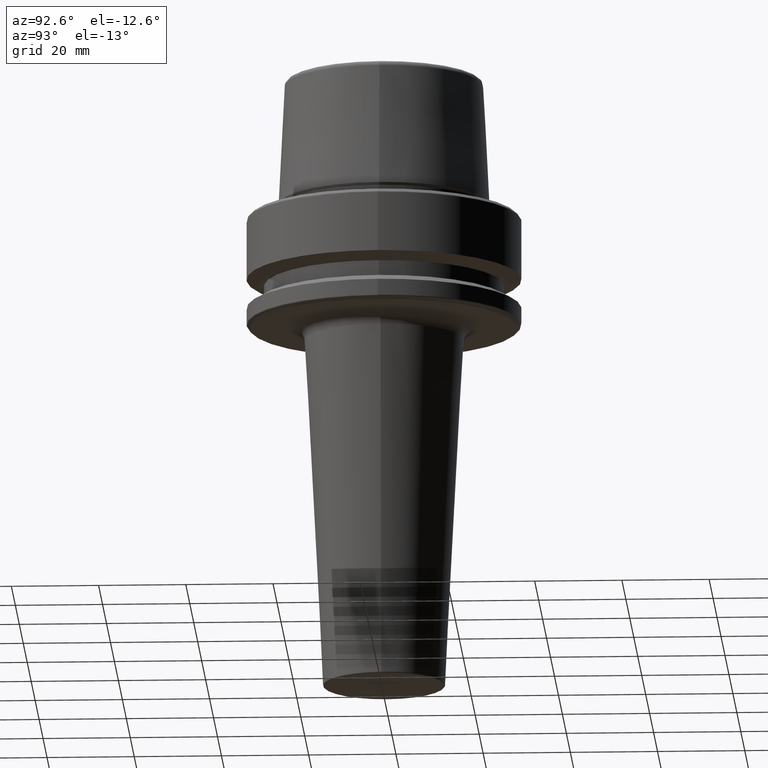
[diagram: clean part render]
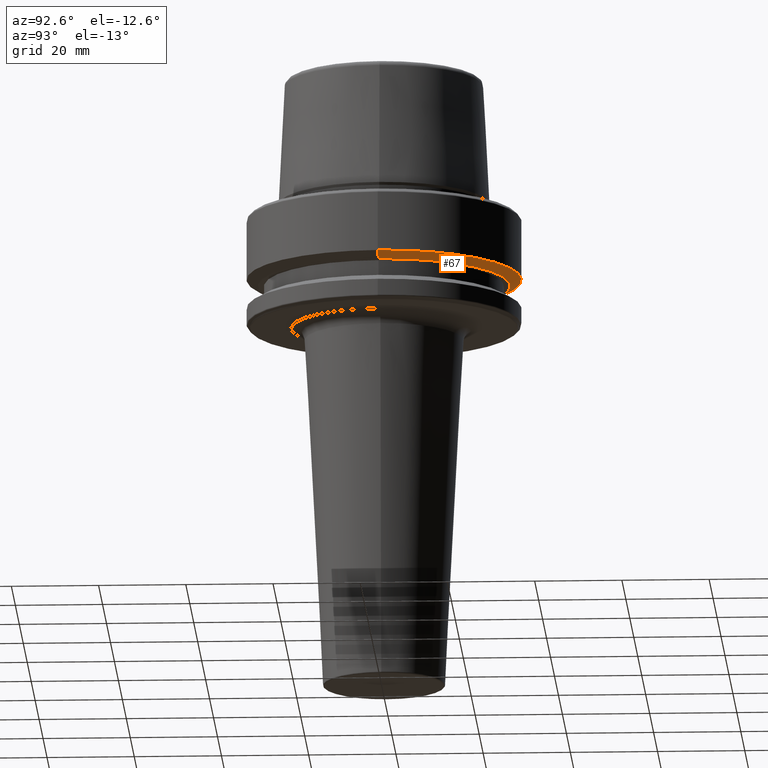
[diagram: same view with one face highlighted and labeled with its STEP entity id]
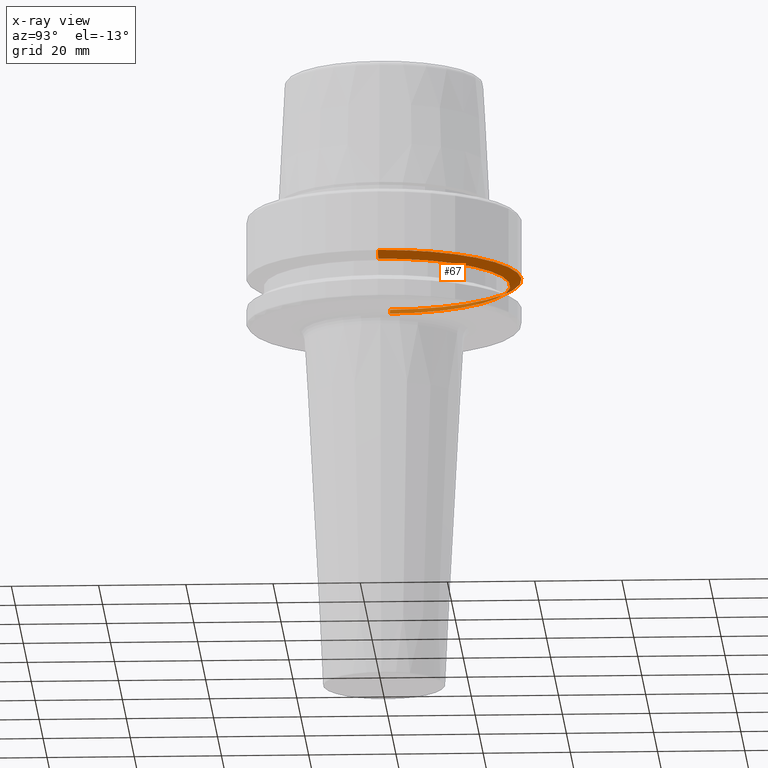
[diagram: x-ray of the same camera — body ghosted, the highlighted face saturated]
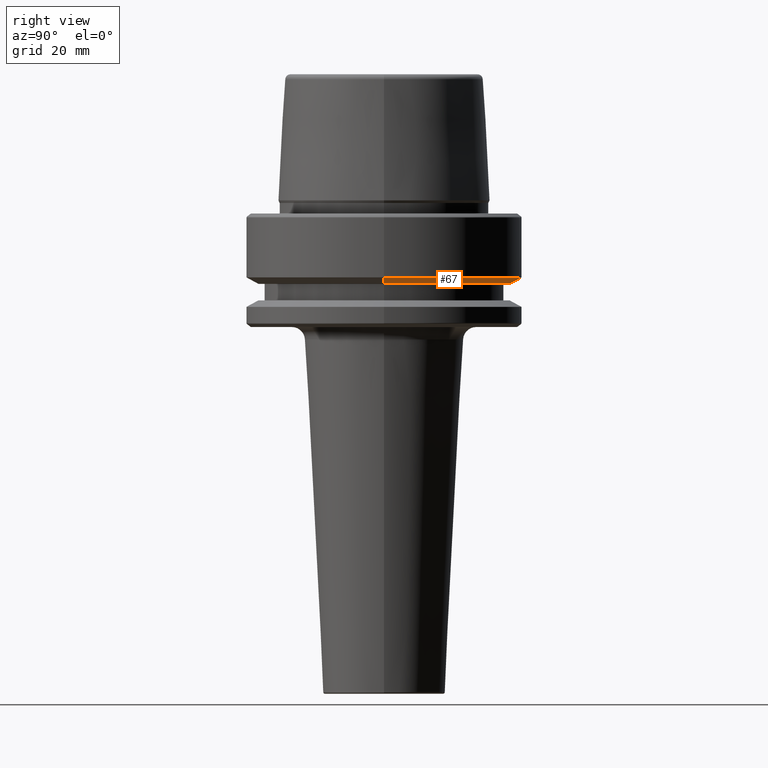
[diagram: same view with one face highlighted and labeled with its STEP entity id]
A machine part, auxiliary view. The second image highlights one B-rep face of the part: STEP entity #67.
The next image is the same camera in x-ray: the body ghosted, the highlighted face saturated — about 20% of this face is hidden behind the body in this view.
A second angle (right view) of the same face is appended — the face is thin or edge-on in the first view.
In plain terms, the highlighted conical surface has half-angle 60 deg.
Its self-contained STEP definition (entity closure, byte-faithful):
#34 = CARTESIAN_POINT ( 'NONE',  ( -28.94089653438085100, 3.700937523921292900E-015, -16.10000000000001600 ) ) ;
#55 = DIRECTION ( 'NONE',  ( -0.0000000000000000000, -0.0000000000000000000, 1.000000000000000000 ) ) ;
#67 = ADVANCED_FACE ( 'NONE', ( #279 ), #664, .T. ) ;
#112 = CARTESIAN_POINT ( 'NONE',  ( 0.0000000000000000000, 0.0000000000000000000, -16.10000000000001600 ) ) ;
#115 = EDGE_CURVE ( 'NONE', #1180, #655, #1093, .T. ) ;
#162 = EDGE_CURVE ( 'NONE', #515, #655, #566, .T. ) ;
#190 = DIRECTION ( 'NONE',  ( -0.0000000000000000000, -0.0000000000000000000, 1.000000000000000000 ) ) ;
#257 = VERTEX_POINT ( 'NONE', #410 ) ;
#265 = DIRECTION ( 'NONE',  ( 1.000000000000000000, 0.0000000000000000000, 0.0000000000000000000 ) ) ;
#279 = FACE_OUTER_BOUND ( 'NONE', #1055, .T. ) ;
#369 = CARTESIAN_POINT ( 'NONE',  ( 31.50000000000000000, 0.0000000000000000000, -14.62250092524070100 ) ) ;
#410 = CARTESIAN_POINT ( 'NONE',  ( 28.94089653438085100, 0.0000000000000000000, -16.10000000000001600 ) ) ;
#444 = EDGE_CURVE ( 'NONE', #257, #1180, #1089, .T. ) ;
#475 = ORIENTED_EDGE ( 'NONE', *, *, #1174, .T. ) ;
#494 = CIRCLE ( 'NONE', #1217, 28.94089653438085100 ) ;
#515 = VERTEX_POINT ( 'NONE', #34 ) ;
#534 = VECTOR ( 'NONE', #791, 1000.000000000000000 ) ;
#566 = LINE ( 'NONE', #787, #1246 ) ;
#655 = VERTEX_POINT ( 'NONE', #748 ) ;
#664 = CONICAL_SURFACE ( 'NONE', #696, 28.94089653438085100, 1.047197551196598300 ) ;
#696 = AXIS2_PLACEMENT_3D ( 'NONE', #112, #55, #1094 ) ;
#711 = CARTESIAN_POINT ( 'NONE',  ( 28.94089653438085100, 0.0000000000000000000, -16.10000000000001600 ) ) ;
#719 = CARTESIAN_POINT ( 'NONE',  ( 0.0000000000000000000, 0.0000000000000000000, -16.10000000000001600 ) ) ;
#728 = ORIENTED_EDGE ( 'NONE', *, *, #115, .F. ) ;
#748 = CARTESIAN_POINT ( 'NONE',  ( -31.50000000000000000, 3.857637417314162700E-015, -14.62250092524070100 ) ) ;
#787 = CARTESIAN_POINT ( 'NONE',  ( -28.94089653438085100, 3.544237630528423800E-015, -16.10000000000001600 ) ) ;
#791 = DIRECTION ( 'NONE',  ( 0.8660254037844389300, 0.0000000000000000000, 0.4999999999999995000 ) ) ;
#932 = CARTESIAN_POINT ( 'NONE',  ( 0.0000000000000000000, 0.0000000000000000000, -14.62250092524070100 ) ) ;
#933 = DIRECTION ( 'NONE',  ( -0.0000000000000000000, -0.0000000000000000000, 1.000000000000000000 ) ) ;
#959 = ORIENTED_EDGE ( 'NONE', *, *, #162, .T. ) ;
#1016 = AXIS2_PLACEMENT_3D ( 'NONE', #932, #190, #265 ) ;
#1044 = DIRECTION ( 'NONE',  ( 1.000000000000000000, 0.0000000000000000000, 0.0000000000000000000 ) ) ;
#1055 = EDGE_LOOP ( 'NONE', ( #475, #959, #728, #1115 ) ) ;
#1089 = LINE ( 'NONE', #711, #534 ) ;
#1093 = CIRCLE ( 'NONE', #1016, 31.50000000000000000 ) ;
#1094 = DIRECTION ( 'NONE',  ( 1.000000000000000000, 0.0000000000000000000, 0.0000000000000000000 ) ) ;
#1115 = ORIENTED_EDGE ( 'NONE', *, *, #444, .F. ) ;
#1139 = DIRECTION ( 'NONE',  ( -0.8660254037844389300, 1.060575238724907300E-016, 0.4999999999999995000 ) ) ;
#1174 = EDGE_CURVE ( 'NONE', #257, #515, #494, .T. ) ;
#1180 = VERTEX_POINT ( 'NONE', #369 ) ;
#1217 = AXIS2_PLACEMENT_3D ( 'NONE', #719, #933, #1044 ) ;
#1246 = VECTOR ( 'NONE', #1139, 1000.000000000000000 ) ;